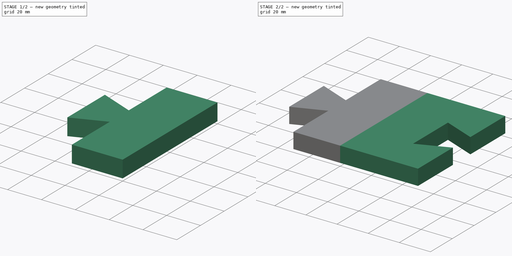
[diagram: build sequence overview — one tinted view per stage of 2, left to right]
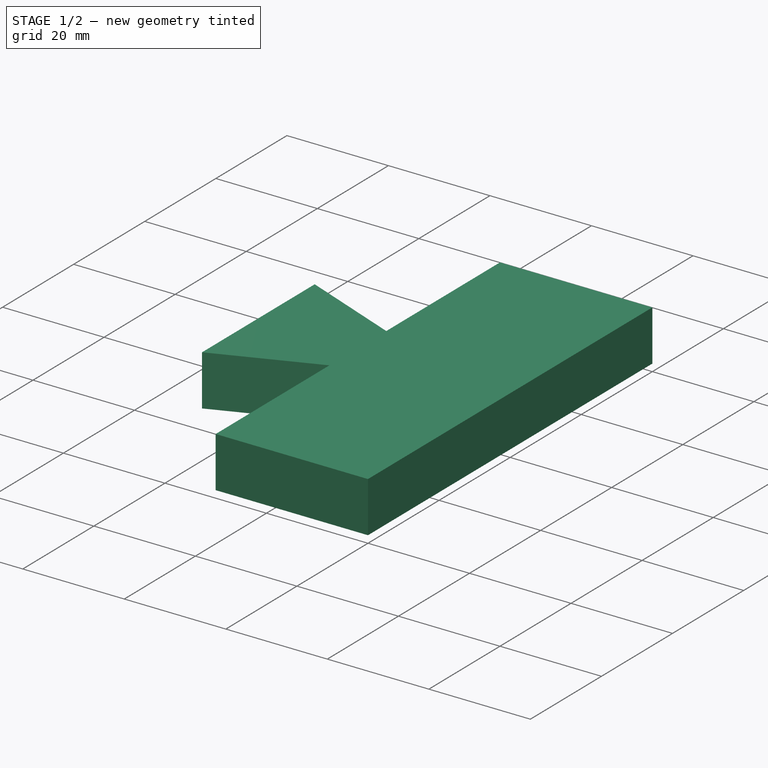
[diagram: stage 1 of 2 — iso view after this stage's code; geometry added in this stage tinted green]
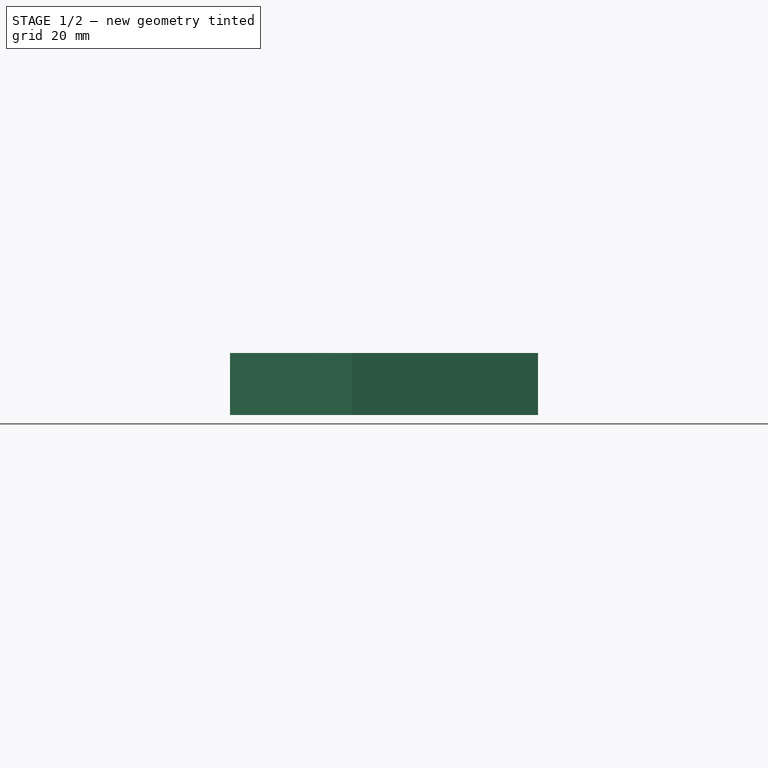
[diagram: stage 1 of 2 — front view after this stage's code; geometry added in this stage tinted green]
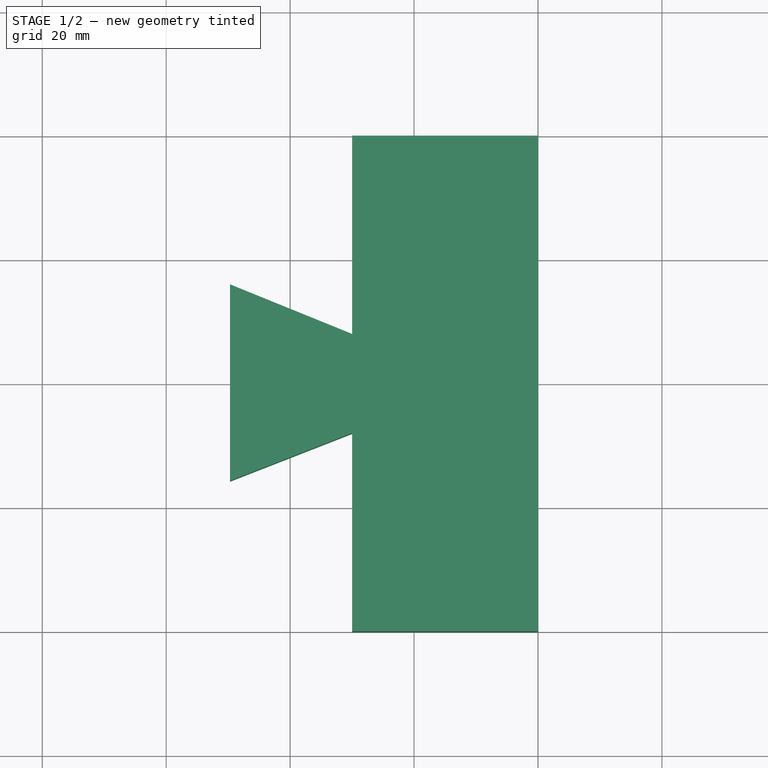
[diagram: stage 1 of 2 — top view after this stage's code; geometry added in this stage tinted green]
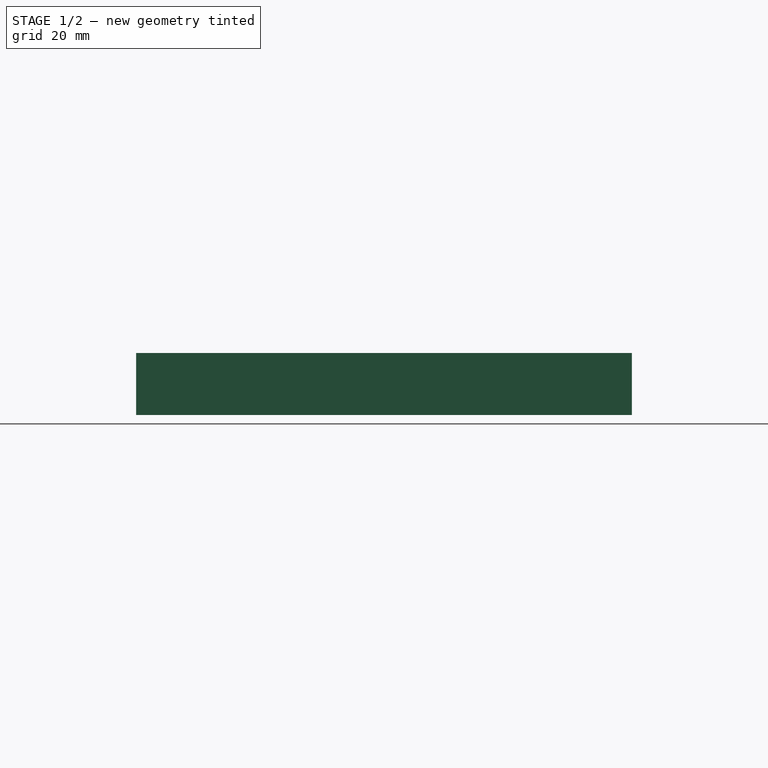
[diagram: stage 1 of 2 — right view after this stage's code; geometry added in this stage tinted green]
FCSTD DOCUMENT  (FreeCAD 0.21R33771 (Git))
Label: Joint Test
License: All rights reserved
LicenseURL: http://en.wikipedia.org/wiki/All_rights_reserved
objects: Sketcher::SketchObject×2, PartDesign::Pad×2, PartDesign::Body×2, Spreadsheet::Sheet×1
note: 8 computed .brp shape members not serialized (recipe doc carries the construction recipe); baked Part::Feature solids carry a one-line shape summary decoded from their .brp

FEATURE [PartDesign::Body] Body  label="Body-socket"
  Group = -> [Sketch,Pad]
  Origin = -> Origin
  Tip = -> Pad
FEATURE [Sketcher::SketchObject] Sketch001
  FullyConstrained = true
  MapMode = 5
  Support = -> [XY_Plane001]
  expr: Constraints[16] = Spreadsheet.B7 - Spreadsheet.B15
  expr: Constraints[17] = Spreadsheet.B8 - Spreadsheet.B15
  expr: Constraints[18] = Spreadsheet.B10
  expr: Constraints[19] = Spreadsheet.B10
  expr: Constraints[22] = (Spreadsheet.B4 - Spreadsheet.B8) / 2
  expr: Constraints[6] = Spreadsheet.B3 - Spreadsheet.B7
  expr: Constraints[7] = Spreadsheet.B4
  sketch-geometry (8):
    g0: LineSegment StartX=0 StartY=0 StartZ=0 EndX=-30 EndY=0 EndZ=0
    g1: LineSegment StartX=-30 StartY=-80 StartZ=0 EndX=0 EndY=-80 EndZ=0
    g2: LineSegment StartX=0 StartY=-80 StartZ=0 EndX=0 EndY=0 EndZ=0
    g3: LineSegment StartX=-30 StartY=0 StartZ=0 EndX=-30 EndY=-32 EndZ=0
    g4: LineSegment StartX=-30 StartY=-32 StartZ=0 EndX=-49.7 EndY=-24 EndZ=0
    g5: LineSegment StartX=-49.7 StartY=-24 StartZ=0 EndX=-49.7 EndY=-55.7 EndZ=0
    g6: LineSegment StartX=-49.7 StartY=-55.7 StartZ=0 EndX=-30 EndY=-48 EndZ=0
    g7: LineSegment StartX=-30 StartY=-48 StartZ=0 EndX=-30 EndY=-80 EndZ=0
  constraints (23):
    c: Coincident(g1,g2)
    c: Coincident(g2,g0)
    c: Horizontal(g0)
    c: Horizontal(g1)
    c: Vertical(g2)
    c: Coincident(g0,g-1)
    c: DistanceX(g0,g0) = 30
    c: DistanceY(g1,g0) = 80
    c: Coincident(g0,g3)
    c: Vertical(g3)
    c: Coincident(g3,g4)
    c: Coincident(g4,g5)
    c: Vertical(g5)
    c: Coincident(g5,g6)
    c: Coincident(g6,g7)
    c: Coincident(g7,g1)
    c: DistanceX(g4,g3) = 19.7
    c: DistanceY(g5,g4) = 31.7
    c: DistanceY(g3,g3) = 32
    c: DistanceY(g7,g7) = 32
    c: Vertical(g7)
    c: Vertical(g6,g3)
    c: DistanceY(g4,g0) = 24
FEATURE [PartDesign::Pad] Pad001
  Direction = (0,0,1)
  Length = 10
  Length2 = 10
  Profile = -> Sketch001
  ReferenceAxis = -> Sketch001 [N_Axis]
  Refine = true
  Type = 0
  expr: Length = Spreadsheet.B5
FEATURE [PartDesign::Body] Body001  label="Body-Pin"
  Group = -> [Sketch001,Pad001]
  Origin = -> Origin001
  Tip = -> Pad001
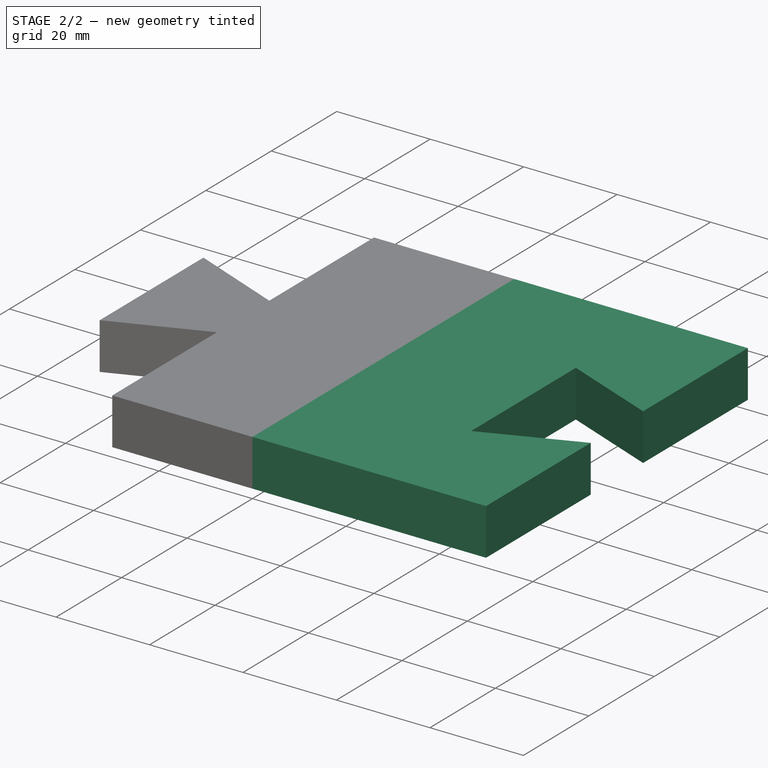
[diagram: stage 2 of 2 — iso view after this stage's code; geometry added in this stage tinted green]
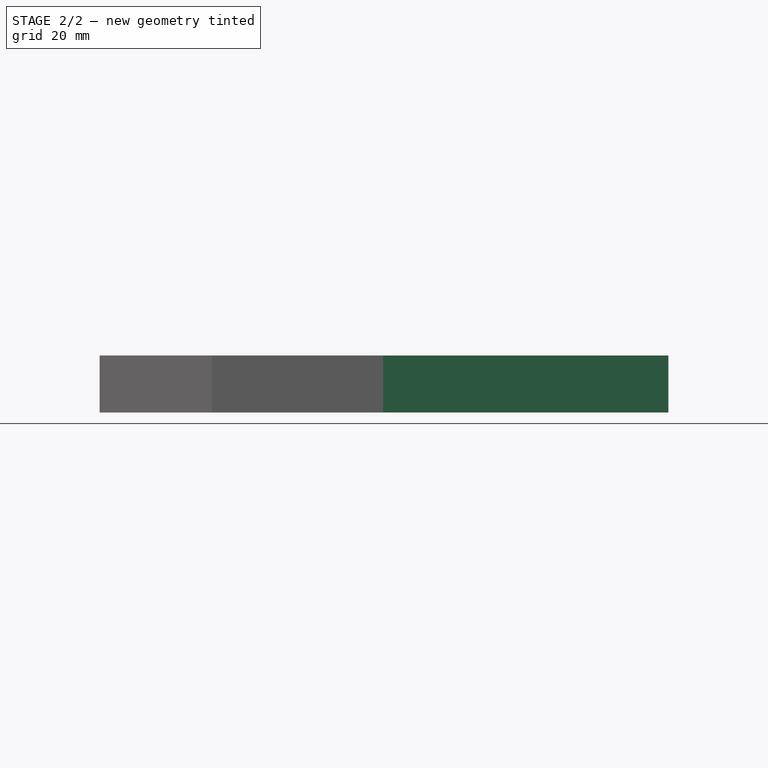
[diagram: stage 2 of 2 — front view after this stage's code; geometry added in this stage tinted green]
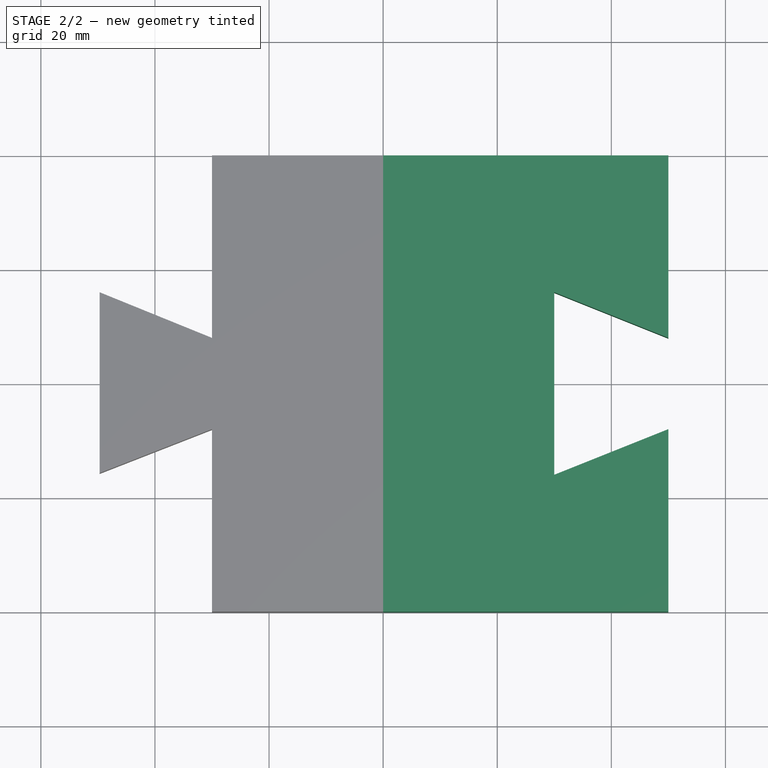
[diagram: stage 2 of 2 — top view after this stage's code; geometry added in this stage tinted green]
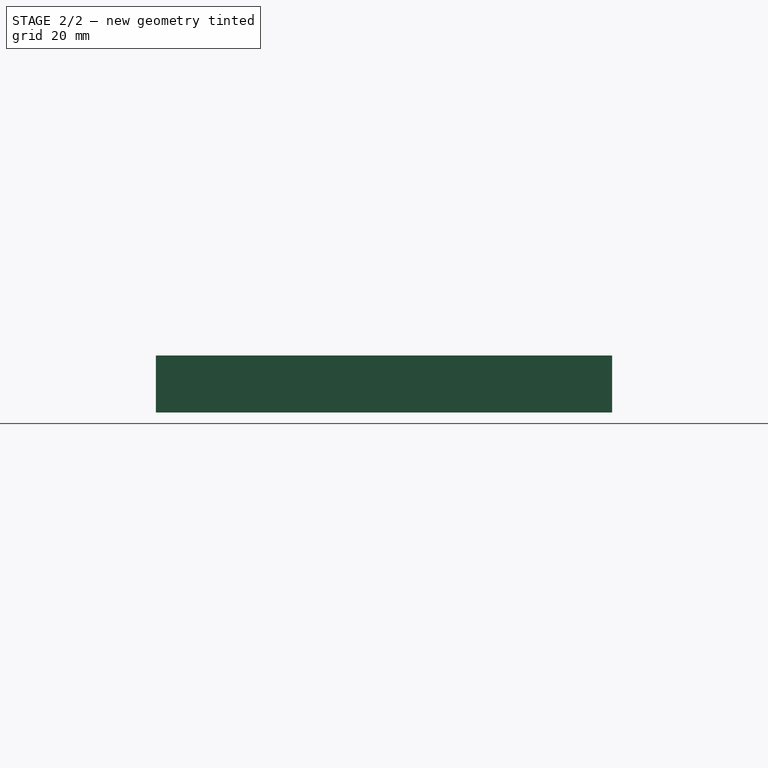
[diagram: stage 2 of 2 — right view after this stage's code; geometry added in this stage tinted green]
FEATURE [Sketcher::SketchObject] Sketch
  FullyConstrained = true
  MapMode = 5
  Support = -> [XY_Plane]
  expr: Constraints[17] = Spreadsheet.B10
  expr: Constraints[18] = Spreadsheet.B8
  expr: Constraints[19] = Spreadsheet.B10
  expr: Constraints[21] = Spreadsheet.B7
  expr: Constraints[22] = (Spreadsheet.B4 - Spreadsheet.B8) / 2
  expr: Constraints[6] = Spreadsheet.B4
  expr: Constraints[7] = Spreadsheet.B3
  sketch-geometry (8):
    g0: LineSegment StartX=0 StartY=0 StartZ=0 EndX=50 EndY=0 EndZ=0
    g1: LineSegment StartX=50 StartY=-80 StartZ=0 EndX=0 EndY=-80 EndZ=0
    g2: LineSegment StartX=0 StartY=-80 StartZ=0 EndX=0 EndY=0 EndZ=0
    g3: LineSegment StartX=50 StartY=0 StartZ=0 EndX=50 EndY=-32 EndZ=0
    g4: LineSegment StartX=50 StartY=-32 StartZ=0 EndX=30 EndY=-24 EndZ=0
    g5: LineSegment StartX=30 StartY=-24 StartZ=0 EndX=30 EndY=-56 EndZ=0
    g6: LineSegment StartX=30 StartY=-56 StartZ=0 EndX=50 EndY=-48 EndZ=0
    g7: LineSegment StartX=50 StartY=-48 StartZ=0 EndX=50 EndY=-80 EndZ=0
  constraints (23):
    c: Coincident(g1,g2)
    c: Coincident(g2,g0)
    c: Horizontal(g0)
    c: Horizontal(g1)
    c: Vertical(g2)
    c: Coincident(g0,g-1)
    c: DistanceY(g2,g2) = 80
    c: DistanceX(g0,g0) = 50
    c: Coincident(g0,g3)
    c: Vertical(g3)
    c: Coincident(g3,g4)
    c: Coincident(g4,g5)
    c: Vertical(g5)
    c: Coincident(g5,g6)
    c: Coincident(g6,g7)
    c: Coincident(g7,g1)
    c: Vertical(g7)
    c: DistanceY(g3,g3) = 32
    c: DistanceY(g5,g5) = 32
    c: DistanceY(g7,g7) = 32
    c: Vertical(g1,g0)
    c: DistanceX(g4,g3) = 20
    c: DistanceY(g4,g0) = 24
FEATURE [Spreadsheet::Sheet] Spreadsheet
  cells = A3='test box width; B3=50; A4='test box length; B4=80; A5='test box depth; B5=10; A7='dovetl width; B7=20; A8='dovetl length; B8==B4 / 2.5; A9='dovetl depth; B9==B5 / 2; A10='dovetl ends; B10==(B4 - B8) / 1.5; A12='lip width; B12=5; A13='lip depth; B13==B5 / 2; A15='tollerance; B15=0.3
FEATURE [PartDesign::Pad] Pad
  Direction = (0,0,1)
  Length = 10
  Length2 = 10
  Profile = -> Sketch
  ReferenceAxis = -> Sketch [N_Axis]
  Refine = true
  Type = 0
  expr: Length = Spreadsheet.B5
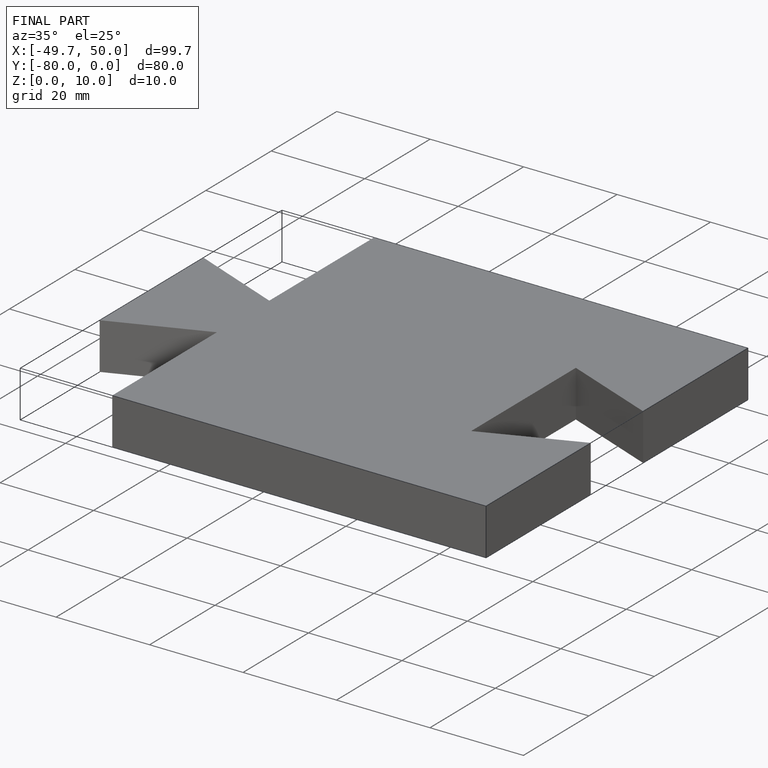
[diagram: finished part — iso view with bounding-box wireframe]
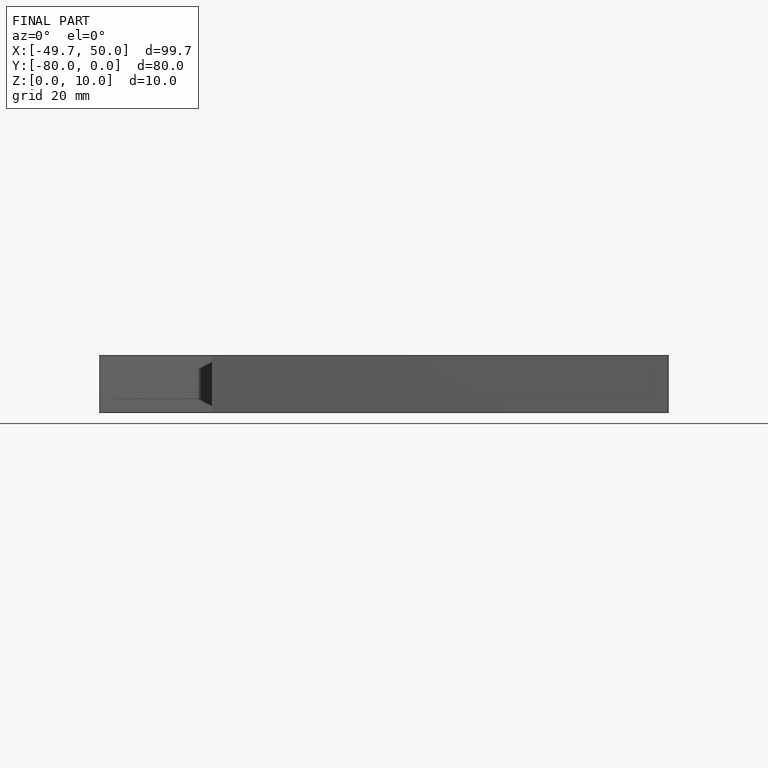
[diagram: finished part — front view with bounding-box wireframe]
